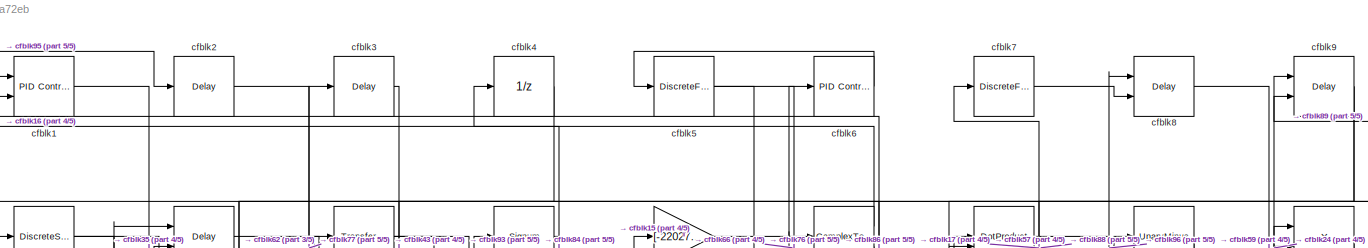
[diagram: root canvas - part 1/5, full width, top band]
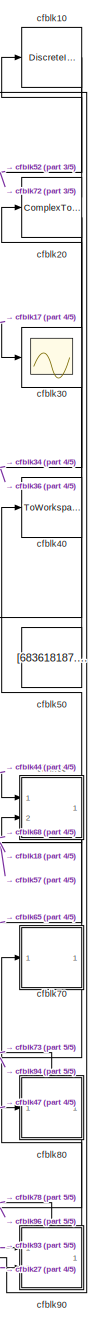
[diagram: root canvas - part 2/5, right side, full height]
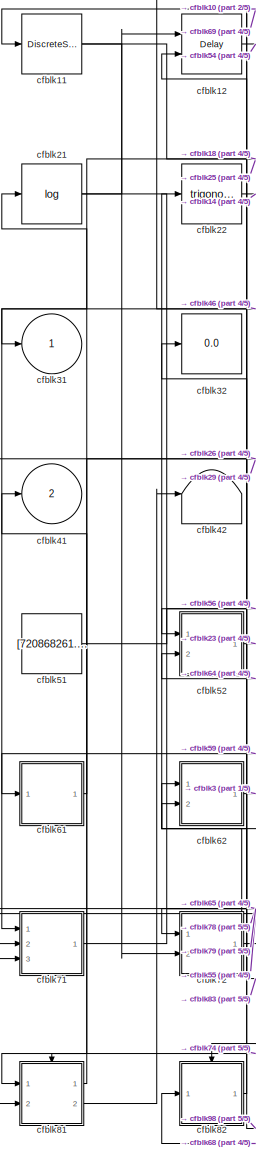
[diagram: root canvas - part 3/5, left side, full height]
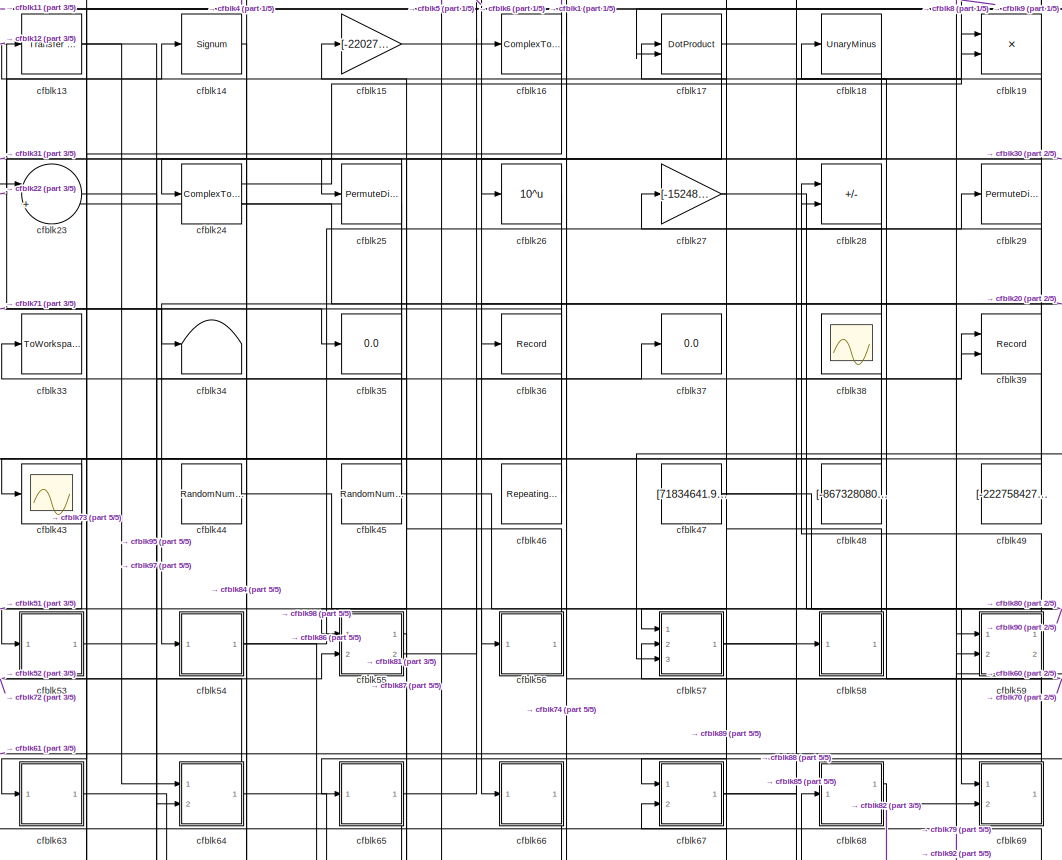
[diagram: root canvas - part 4/5, central region]
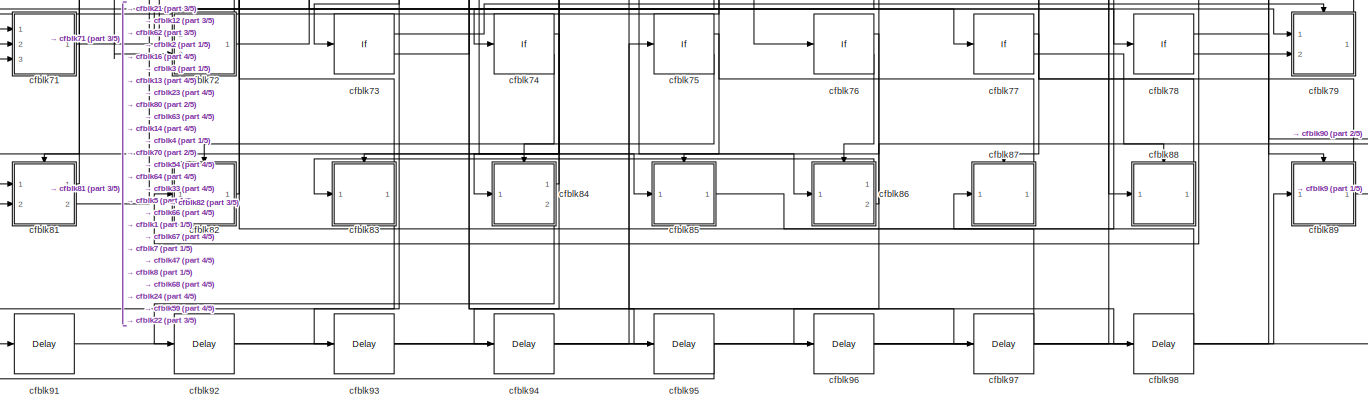
[diagram: root canvas - part 5/5, full width, bottom band]
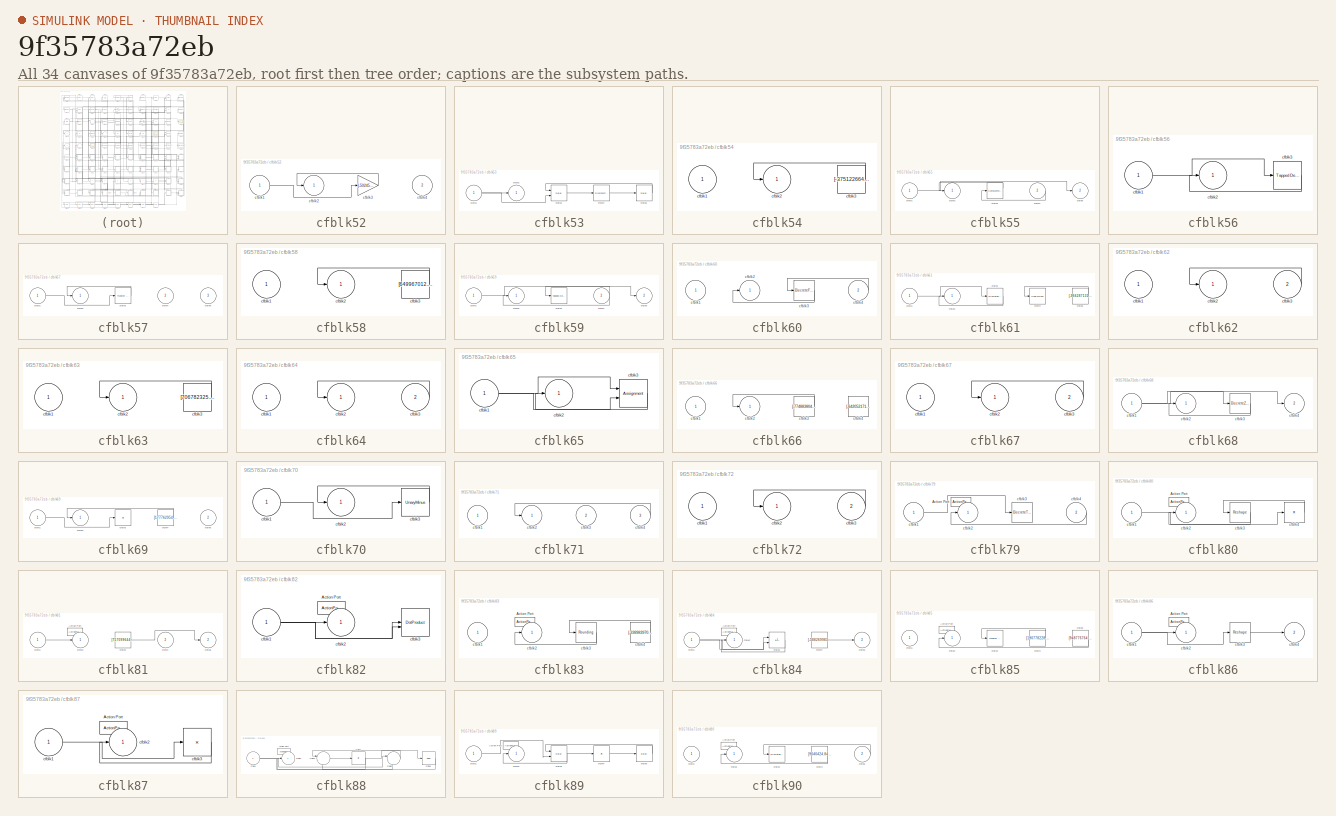
[diagram: thumbnail index - all 34 canvases of the model, root first then tree order]
MODEL slx_9f35783a72eb
KIND model
CONFIG AbsTol = auto
CONFIG EnableMultiTasking = off
CONFIG FixedStep = auto
CONFIG MaxStep = auto
CONFIG MinStep = auto
CONFIG RelTol = 1e-3
CONFIG SampleTimeConstraint = Unconstrained
CONFIG SolverName = VariableStepAuto
CONFIG StartTime = 0.0
CONFIG StopTime = 10.0
BLOCK [Reference] cfblk1  REF=slpidlib/PID Controller (2DOF)
  Ports = [2, 1]
  SourceBlock = slpidlib/PID Controller (2DOF)
  SourceProductBaseCode = SL
  SourceType = PID 2dof
BLOCK [DiscreteIntegrator] cfblk10
  ICPrevOutput = DiscIntNeverNeededParam
  ICPrevScaledInput = DiscIntNeverNeededParam
  InitialConditionSetting = Auto
  Ports = [1, 1]
BLOCK [DiscreteStateSpace] cfblk11
BLOCK [Delay] cfblk12
  InputPortMap = u0,e6
  Ports = [2, 1]
  SampleTime = 1
  ShowEnablePort = on
BLOCK [Reference] cfblk13  REF=simulink/Discrete/Transfer Fcn
First Order
  Ports = [1, 1]
  SourceBlock = simulink/Discrete/Transfer Fcn\nFirst Order
  SourceProductBaseCode = SL
  SourceType = First Order Transfer Fcn
BLOCK [Signum] cfblk14
BLOCK [Gain] cfblk15
  Gain = [-220275221.042691]
BLOCK [ComplexToRealImag] cfblk16
  Ports = [1, 2]
BLOCK [DotProduct] cfblk17
  OutDataTypeStr = Inherit: Inherit via internal rule
BLOCK [UnaryMinus] cfblk18
BLOCK [Product] cfblk19
  Ports = [2, 1]
BLOCK [Delay] cfblk2
  InputPortMap = u0
  Ports = [1, 1]
  SampleTime = 1
BLOCK [ComplexToRealImag] cfblk20
  Ports = [1, 2]
BLOCK [Math] cfblk21
  Operator = log
  Ports = [1, 1]
BLOCK [Trigonometry] cfblk22
  Ports = [1, 1]
BLOCK [Sum] cfblk23
  Inputs = |++
  Ports = [2, 1]
BLOCK [ComplexToMagnitudeAngle] cfblk24
  Ports = [1, 2]
BLOCK [PermuteDimensions] cfblk25
BLOCK [Math] cfblk26
  Operator = 10^u
  Ports = [1, 1]
BLOCK [Gain] cfblk27
  Gain = [-152482904.708316]
BLOCK [Sum] cfblk28
  IconShape = rectangular
  Inputs = -+
  Ports = [2, 1]
BLOCK [PermuteDimensions] cfblk29
BLOCK [Delay] cfblk3
  InputPortMap = u0
  Ports = [1, 1]
  SampleTime = 1
BLOCK [Scope] cfblk30
  Floating = off
  NumInputPorts = 1
  Ports = [1]
BLOCK [Outport] cfblk31
BLOCK [Display] cfblk32
  Decimation = 1
  Ports = [1]
BLOCK [ToWorkspace] cfblk33
  FixptAsFi = on
  MaxDataPoints = inf
  Ports = [1]
  SampleTime = -1
  SaveFormat = Timeseries
  VariableName = mmttlgh
BLOCK [Terminator] cfblk34
BLOCK [Display] cfblk35
  Decimation = 1
  Ports = [1]
BLOCK [Record] cfblk36
  FileSettingsInternal = {"entries":[{"content":{"excelSettings":{"content":{},"type":"Streamout.ExcelSettings"}},"type":"Streamout.FileSettingStorage","uuid":"4783f050-7d98-462b-b792-b8648497e3fe"}],"packageUris":["http://schema.mathworks.com/mf0/streamout_blocks/R2020a"],"version":"1.0"}
  Ports = [1]
  SignalsInternal = {"entries":[{"content":{"signals":[{"content":{"blockPath":["sampleModel261/cfblk36"],"channel":[],"dimensions":[1],"domain":"sampleModel261/cfblk36","lineColor":"#ff6929","plots":[1],"port":1,"sid":[""],"signalID":10888,"signalName":"cfblk20:2"},"type":"RecordBlkView.Signal","uuid":"4df9fe2c-f34f-4dbe-b7be-8e884af156bd"}]},"type":"RecordBlkView.InputSignals","uuid":"7474e692-34f3-44e7-b6b0-6796ef...<+100ch>
  VisualizationBindings = {"sparklinesplugin":{"info":[{"bindingParametersList":[],"subplotID":1}]}}
BLOCK [Display] cfblk37
  Decimation = 1
  Ports = [1]
BLOCK [Scope] cfblk38
  Floating = on
  NumInputPorts = 1
  Ports = []
BLOCK [Record] cfblk39
  CompatibilityTag = XY
  FileSettingsInternal = {"entries":[{"content":{"excelSettings":{"content":{},"type":"Streamout.ExcelSettings"}},"type":"Streamout.FileSettingStorage","uuid":"46861a95-7c26-4399-873a-b522a0f094fc"}],"packageUris":["http://schema.mathworks.com/mf0/streamout_blocks/R2020a"],"version":"1.0"}
  Layout = [1 1]
  Ports = [2]
  SignalsInternal = {"entries":[{"content":{"signals":[{"content":{"blockPath":["sampleModel261/cfblk39"],"channel":[],"dimensions":[1],"domain":"sampleModel261/cfblk39","lineColor":"#a2142f","plots":[1],"port":1,"sid":[""],"signalID":10892,"signalName":"cfblk53"},"type":"RecordBlkView.Signal","uuid":"985c65e8-5a49-40a9-873e-d05232d7a301"},{"content":{"blockPath":["sampleModel261/cfblk39"],"channel":[],"dimensions":[...<+385ch>
  VisualizationBindings = {"xyplotplugin":{"info":[{"series":[{"bindingParametersList":[{"parameter":"X-Axis","signalID":10892,"signalName":"cfblk53"},{"parameter":"Y-Axis","signalID":10896,"signalName":"cfblk67"}],"seriesID":48733}],"subplotID":1}]}}
BLOCK [UnitDelay] cfblk4
  HasFrameUpgradeWarning = on
BLOCK [ToWorkspace] cfblk40
  FixptAsFi = on
  MaxDataPoints = inf
  Ports = [1]
  SampleTime = -1
  SaveFormat = Timeseries
  VariableName = mrovnyd
BLOCK [Outport] cfblk41
  Port = 2
BLOCK [Terminator] cfblk42
BLOCK [Scope] cfblk43
  Floating = off
  NumInputPorts = 1
  Ports = [1]
BLOCK [RandomNumber] cfblk44
  Mean = [-42971.551268]
  SampleTime = 0.1
  Seed = [350835842.000000]
  Variance = [4965.905583]
BLOCK [RandomNumber] cfblk45
  Mean = [-61962.834245]
  SampleTime = 0.1
  Seed = [162837869.000000]
  Variance = [36079.524142]
BLOCK [Reference] cfblk46  REF=simulink/Sources/Repeating
Sequence
Stair
  Ports = [0, 1]
  SourceBlock = simulink/Sources/Repeating\nSequence\nStair
  SourceProductBaseCode = SL
  SourceType = Repeating Sequence Stair
BLOCK [Constant] cfblk47
  SampleTime = 1
  Value = [71834641.996804]
BLOCK [Constant] cfblk48
  SampleTime = 1
  Value = [-867328080.022931]
BLOCK [Constant] cfblk49
  SampleTime = 1
  Value = [-222758427.786879]
BLOCK [DiscreteFir] cfblk5
  InputPortMap = u0
  OutputPortMap = o0
  Ports = [1, 1]
  SampleTime = 1
BLOCK [Constant] cfblk50
  SampleTime = 1
  Value = [683618187.275819]
BLOCK [Constant] cfblk51
  SampleTime = 1
  Value = [720868261.094685]
BLOCK [SubSystem] cfblk52
  Ports = [2, 1]
  RequestExecContextInheritance = off
BLOCK [Inport] cfblk52/cfblk1
BLOCK [Outport] cfblk52/cfblk2
BLOCK [Gain] cfblk52/cfblk3
  Gain = [-502459091.034332]
BLOCK [Inport] cfblk52/cfblk4
  Port = 2
BLOCK [SubSystem] cfblk53
  Ports = [1, 1]
  RequestExecContextInheritance = off
BLOCK [Inport] cfblk53/cfblk1
BLOCK [Outport] cfblk53/cfblk2
BLOCK [Delay] cfblk53/cfblk3
  DelayLengthSource = Input port
  InputPortMap = u0,p1
  Ports = [2, 1]
  SampleTime = 1
BLOCK [DiscreteTransferFcn] cfblk53/cfblk4
  InputPortMap = u0
  Ports = [1, 1]
  SampleTime = 1
BLOCK [Delay] cfblk53/cfblk5
  InputPortMap = u0
  Ports = [1, 1]
  SampleTime = 1
BLOCK [SubSystem] cfblk54
  Ports = [1, 1]
  RequestExecContextInheritance = off
BLOCK [Inport] cfblk54/cfblk1
BLOCK [Outport] cfblk54/cfblk2
BLOCK [Constant] cfblk54/cfblk3
  SampleTime = 1
  Value = [-375122664.981902]
BLOCK [SubSystem] cfblk55
  Ports = [2, 2]
  RequestExecContextInheritance = off
BLOCK [Inport] cfblk55/cfblk1
BLOCK [Outport] cfblk55/cfblk2
BLOCK [ComplexToRealImag] cfblk55/cfblk3
  Ports = [1, 2]
BLOCK [Inport] cfblk55/cfblk4
  Port = 2
BLOCK [Outport] cfblk55/cfblk5
  Port = 2
BLOCK [SubSystem] cfblk56
  Ports = [1, 1]
  RequestExecContextInheritance = off
BLOCK [Inport] cfblk56/cfblk1
BLOCK [Outport] cfblk56/cfblk2
BLOCK [Reference] cfblk56/cfblk3  REF=simulink/Discrete/Tapped Delay
  Ports = [1, 1]
  SourceBlock = simulink/Discrete/Tapped Delay
  SourceProductBaseCode = SL
  SourceType = Tapped Delay Line
BLOCK [SubSystem] cfblk57
  Ports = [3, 1]
  RequestExecContextInheritance = off
BLOCK [Inport] cfblk57/cfblk1
BLOCK [Outport] cfblk57/cfblk2
BLOCK [Reference] cfblk57/cfblk3  REF=simulink/Discrete/Transfer Fcn
First Order
  Ports = [1, 1]
  SourceBlock = simulink/Discrete/Transfer Fcn\nFirst Order
  SourceProductBaseCode = SL
  SourceType = First Order Transfer Fcn
BLOCK [Inport] cfblk57/cfblk4
  Port = 2
BLOCK [Inport] cfblk57/cfblk5
  Port = 3
BLOCK [SubSystem] cfblk58
  Ports = [1, 1]
  RequestExecContextInheritance = off
BLOCK [Inport] cfblk58/cfblk1
BLOCK [Outport] cfblk58/cfblk2
BLOCK [Constant] cfblk58/cfblk3
  SampleTime = 1
  Value = [649967012.851321]
BLOCK [SubSystem] cfblk59
  Ports = [2, 2]
  RequestExecContextInheritance = off
BLOCK [Inport] cfblk59/cfblk1
BLOCK [Outport] cfblk59/cfblk2
BLOCK [Reference] cfblk59/cfblk3  REF=simulink/Discrete/Tapped Delay
  Ports = [1, 1]
  SourceBlock = simulink/Discrete/Tapped Delay
  SourceProductBaseCode = SL
  SourceType = Tapped Delay Line
BLOCK [Inport] cfblk59/cfblk4
  Port = 2
BLOCK [Outport] cfblk59/cfblk5
  Port = 2
BLOCK [Reference] cfblk6  REF=slpidlib/PID Controller
  Ports = [1, 1]
  SourceBlock = slpidlib/PID Controller
  SourceProductBaseCode = SL
  SourceType = PID 1dof
BLOCK [SubSystem] cfblk60
  Ports = [2, 1]
  RequestExecContextInheritance = off
BLOCK [Inport] cfblk60/cfblk1
BLOCK [Outport] cfblk60/cfblk2
BLOCK [DiscreteFilter] cfblk60/cfblk3
  InputPortMap = u0
  Ports = [1, 1]
  SampleTime = 1
BLOCK [Inport] cfblk60/cfblk4
  Port = 2
BLOCK [SubSystem] cfblk61
  Ports = [1, 1]
  RequestExecContextInheritance = off
BLOCK [Inport] cfblk61/cfblk1
BLOCK [Outport] cfblk61/cfblk2
BLOCK [DiscreteFilter] cfblk61/cfblk3
  InputPortMap = u0
  Ports = [1, 1]
  SampleTime = 1
BLOCK [UnaryMinus] cfblk61/cfblk4
BLOCK [Constant] cfblk61/cfblk5
  SampleTime = 1
  Value = [-966287131.341297]
BLOCK [SubSystem] cfblk62
  Ports = [2, 1]
  RequestExecContextInheritance = off
BLOCK [Inport] cfblk62/cfblk1
BLOCK [Outport] cfblk62/cfblk2
BLOCK [Inport] cfblk62/cfblk3
  Port = 2
BLOCK [SubSystem] cfblk63
  Ports = [1, 1]
  RequestExecContextInheritance = off
BLOCK [Inport] cfblk63/cfblk1
BLOCK [Outport] cfblk63/cfblk2
BLOCK [Constant] cfblk63/cfblk3
  SampleTime = 1
  Value = [706782325.083097]
BLOCK [SubSystem] cfblk64
  Ports = [2, 1]
  RequestExecContextInheritance = off
BLOCK [Inport] cfblk64/cfblk1
BLOCK [Outport] cfblk64/cfblk2
BLOCK [Inport] cfblk64/cfblk3
  Port = 2
BLOCK [SubSystem] cfblk65
  Ports = [1, 1]
  RequestExecContextInheritance = off
BLOCK [Inport] cfblk65/cfblk1
BLOCK [Outport] cfblk65/cfblk2
BLOCK [Assignment] cfblk65/cfblk3
  DiagnosticForDimensions = Warning
  IndexOptions = Index vector (dialog)
  Indices = 1
  OutputSizes = 1
  Ports = [2, 1]
BLOCK [SubSystem] cfblk66
  Ports = [1, 1]
  RequestExecContextInheritance = off
BLOCK [Inport] cfblk66/cfblk1
BLOCK [Outport] cfblk66/cfblk2
BLOCK [Constant] cfblk66/cfblk3
  SampleTime = 1
  Value = [-774883804.689383]
BLOCK [Constant] cfblk66/cfblk4
  SampleTime = 1
  Value = [-642052171.851356]
BLOCK [SubSystem] cfblk67
  Ports = [2, 1]
  RequestExecContextInheritance = off
BLOCK [Inport] cfblk67/cfblk1
BLOCK [Outport] cfblk67/cfblk2
BLOCK [Inport] cfblk67/cfblk3
  Port = 2
BLOCK [SubSystem] cfblk68
  Ports = [1, 2]
  RequestExecContextInheritance = off
BLOCK [Inport] cfblk68/cfblk1
BLOCK [Outport] cfblk68/cfblk2
BLOCK [DiscreteZeroPole] cfblk68/cfblk3
  Gain = 1
  Poles = [0 0.5]
BLOCK [Outport] cfblk68/cfblk4
  Port = 2
BLOCK [SubSystem] cfblk69
  Ports = [2, 1]
  RequestExecContextInheritance = off
BLOCK [Inport] cfblk69/cfblk1
BLOCK [Outport] cfblk69/cfblk2
BLOCK [Product] cfblk69/cfblk3
  Inputs = *
  Ports = [1, 1]
BLOCK [Constant] cfblk69/cfblk4
  SampleTime = 1
  Value = [177762954.511539]
BLOCK [Inport] cfblk69/cfblk5
  Port = 2
BLOCK [DiscreteFir] cfblk7
  InputPortMap = u0
  OutputPortMap = o0
  Ports = [1, 1]
  SampleTime = 1
BLOCK [SubSystem] cfblk70
  Ports = [1, 1]
  RequestExecContextInheritance = off
BLOCK [Inport] cfblk70/cfblk1
BLOCK [Outport] cfblk70/cfblk2
BLOCK [UnaryMinus] cfblk70/cfblk3
BLOCK [SubSystem] cfblk71
  Ports = [3, 1]
  RequestExecContextInheritance = off
BLOCK [Inport] cfblk71/cfblk1
BLOCK [Outport] cfblk71/cfblk2
BLOCK [Inport] cfblk71/cfblk3
  Port = 2
BLOCK [Inport] cfblk71/cfblk4
  Port = 3
BLOCK [SubSystem] cfblk72
  Ports = [2, 1]
  RequestExecContextInheritance = off
BLOCK [Inport] cfblk72/cfblk1
BLOCK [Outport] cfblk72/cfblk2
BLOCK [Inport] cfblk72/cfblk3
  Port = 2
BLOCK [If] cfblk73
  IfExpression = u1 >= 0
  Ports = [1, 2]
  SampleTime = 1
BLOCK [If] cfblk74
  IfExpression = u1 >= 0
  Ports = [1, 2]
  SampleTime = 1
BLOCK [If] cfblk75
  IfExpression = u1 >= 0
  Ports = [1, 2]
  SampleTime = 1
BLOCK [If] cfblk76
  IfExpression = u1 >= 0
  Ports = [1, 2]
  SampleTime = 1
BLOCK [If] cfblk77
  IfExpression = u1 >= 0
  Ports = [1, 2]
  SampleTime = 1
BLOCK [If] cfblk78
  IfExpression = u1 >= 0
  Ports = [1, 2]
  SampleTime = 1
BLOCK [SubSystem] cfblk79
  Ports = [2, 1, 0, 0, 0, 0, 0, 1]
  RequestExecContextInheritance = off
  TreatAsAtomicUnit = on
BLOCK [ActionPort] cfblk79/Action Port
  ActionPortLabel = if(u1 >= 0)
BLOCK [Inport] cfblk79/cfblk1
BLOCK [Outport] cfblk79/cfblk2
BLOCK [DiscreteTransferFcn] cfblk79/cfblk3
  InputPortMap = u0
  Ports = [1, 1]
BLOCK [Inport] cfblk79/cfblk4
  Port = 2
BLOCK [Delay] cfblk8
  DelayLengthSource = Input port
  InputPortMap = u0,p1
  Ports = [2, 1]
  SampleTime = 1
BLOCK [SubSystem] cfblk80
  Ports = [1, 1, 0, 0, 0, 0, 0, 1]
  RequestExecContextInheritance = off
  TreatAsAtomicUnit = on
BLOCK [ActionPort] cfblk80/Action Port
  ActionPortLabel = else
BLOCK [Inport] cfblk80/cfblk1
BLOCK [Outport] cfblk80/cfblk2
BLOCK [Reshape] cfblk80/cfblk3
  Ports = [1, 1]
BLOCK [Product] cfblk80/cfblk4
  Inputs = *
  Ports = [1, 1]
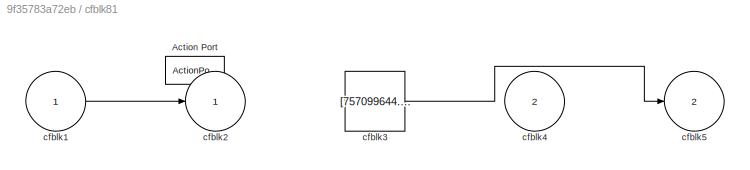
BLOCK [SubSystem] cfblk81
  Ports = [2, 2, 0, 0, 0, 0, 0, 1]
  RequestExecContextInheritance = off
  TreatAsAtomicUnit = on
BLOCK [ActionPort] cfblk81/Action Port
  ActionPortLabel = if(u1 >= 0)
BLOCK [Inport] cfblk81/cfblk1
BLOCK [Outport] cfblk81/cfblk2
BLOCK [Constant] cfblk81/cfblk3
  SampleTime = 1
  Value = [757099644.323726]
BLOCK [Inport] cfblk81/cfblk4
  Port = 2
BLOCK [Outport] cfblk81/cfblk5
  Port = 2
BLOCK [SubSystem] cfblk82
  Ports = [1, 1, 0, 0, 0, 0, 0, 1]
  RequestExecContextInheritance = off
  TreatAsAtomicUnit = on
BLOCK [ActionPort] cfblk82/Action Port
  ActionPortLabel = else
BLOCK [Inport] cfblk82/cfblk1
BLOCK [Outport] cfblk82/cfblk2
BLOCK [DotProduct] cfblk82/cfblk3
  OutDataTypeStr = Inherit: Inherit via internal rule
BLOCK [SubSystem] cfblk83
  Ports = [1, 1, 0, 0, 0, 0, 0, 1]
  RequestExecContextInheritance = off
  TreatAsAtomicUnit = on
BLOCK [ActionPort] cfblk83/Action Port
  ActionPortLabel = if(u1 >= 0)
BLOCK [Inport] cfblk83/cfblk1
BLOCK [Outport] cfblk83/cfblk2
BLOCK [Rounding] cfblk83/cfblk3
BLOCK [Constant] cfblk83/cfblk4
  SampleTime = 1
  Value = [-338983970.118135]
BLOCK [SubSystem] cfblk84
  Ports = [1, 2, 0, 0, 0, 0, 0, 1]
  RequestExecContextInheritance = off
  TreatAsAtomicUnit = on
BLOCK [ActionPort] cfblk84/Action Port
  ActionPortLabel = else
BLOCK [Inport] cfblk84/cfblk1
BLOCK [Outport] cfblk84/cfblk2
BLOCK [Sum] cfblk84/cfblk3
  IconShape = rectangular
  Inputs = +-
  Ports = [2, 1]
BLOCK [Constant] cfblk84/cfblk4
  SampleTime = 1
  Value = [-588269983.311206]
BLOCK [Outport] cfblk84/cfblk5
  Port = 2
BLOCK [SubSystem] cfblk85
  Ports = [1, 1, 0, 0, 0, 0, 0, 1]
  RequestExecContextInheritance = off
  TreatAsAtomicUnit = on
BLOCK [ActionPort] cfblk85/Action Port
  ActionPortLabel = if(u1 >= 0)
BLOCK [Inport] cfblk85/cfblk1
BLOCK [Outport] cfblk85/cfblk2
BLOCK [Reference] cfblk85/cfblk3  REF=simulink/Discrete/Transfer Fcn
Real Zero
  Ports = [1, 1]
  SourceBlock = simulink/Discrete/Transfer Fcn\nReal Zero
  SourceProductBaseCode = SL
  SourceType = Transfer Fcn Real Zero
BLOCK [Constant] cfblk85/cfblk4
  SampleTime = 1
  Value = [190778228.898179]
BLOCK [Constant] cfblk85/cfblk5
  SampleTime = 1
  Value = [948776764.086143]
BLOCK [SubSystem] cfblk86
  Ports = [1, 2, 0, 0, 0, 0, 0, 1]
  RequestExecContextInheritance = off
  TreatAsAtomicUnit = on
BLOCK [ActionPort] cfblk86/Action Port
  ActionPortLabel = else
BLOCK [Inport] cfblk86/cfblk1
BLOCK [Outport] cfblk86/cfblk2
BLOCK [Reshape] cfblk86/cfblk3
  Ports = [1, 1]
BLOCK [Outport] cfblk86/cfblk4
  Port = 2
BLOCK [SubSystem] cfblk87
  Ports = [1, 1, 0, 0, 0, 0, 0, 1]
  RequestExecContextInheritance = off
  TreatAsAtomicUnit = on
BLOCK [ActionPort] cfblk87/Action Port
  ActionPortLabel = if(u1 >= 0)
BLOCK [Inport] cfblk87/cfblk1
BLOCK [Outport] cfblk87/cfblk2
BLOCK [Product] cfblk87/cfblk3
  Inputs = *
  Ports = [1, 1]
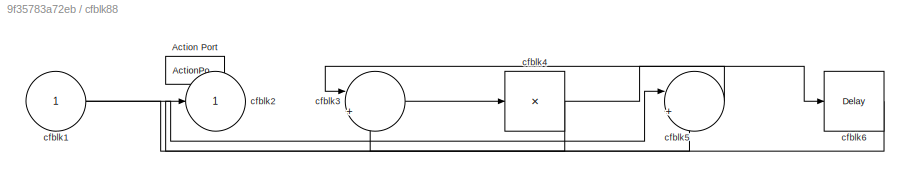
BLOCK [SubSystem] cfblk88
  Ports = [1, 1, 0, 0, 0, 0, 0, 1]
  RequestExecContextInheritance = off
  TreatAsAtomicUnit = on
BLOCK [ActionPort] cfblk88/Action Port
  ActionPortLabel = else
BLOCK [Inport] cfblk88/cfblk1
BLOCK [Outport] cfblk88/cfblk2
BLOCK [Sum] cfblk88/cfblk3
  Inputs = |++
  Ports = [2, 1]
BLOCK [Product] cfblk88/cfblk4
  Inputs = *
  Ports = [1, 1]
BLOCK [Sum] cfblk88/cfblk5
  Inputs = |++
  Ports = [2, 1]
BLOCK [Delay] cfblk88/cfblk6
  InputPortMap = u0
  Ports = [1, 1]
BLOCK [SubSystem] cfblk89
  Ports = [1, 1, 0, 0, 0, 0, 0, 1]
  RequestExecContextInheritance = off
  TreatAsAtomicUnit = on
BLOCK [ActionPort] cfblk89/Action Port
  ActionPortLabel = if(u1 >= 0)
BLOCK [Inport] cfblk89/cfblk1
BLOCK [Outport] cfblk89/cfblk2
BLOCK [Delay] cfblk89/cfblk3
  InputPortMap = u0,e6
  Ports = [2, 1]
  ShowEnablePort = on
BLOCK [Product] cfblk89/cfblk4
  Inputs = *
  Ports = [1, 1]
BLOCK [Delay] cfblk89/cfblk5
  InputPortMap = u0
  Ports = [1, 1]
BLOCK [Delay] cfblk9
  InputPortMap = u0,e6
  Ports = [2, 1]
  SampleTime = 1
  ShowEnablePort = on
BLOCK [SubSystem] cfblk90
  Ports = [2, 1, 0, 0, 0, 0, 0, 1]
  RequestExecContextInheritance = off
  TreatAsAtomicUnit = on
BLOCK [ActionPort] cfblk90/Action Port
  ActionPortLabel = else
BLOCK [Inport] cfblk90/cfblk1
BLOCK [Outport] cfblk90/cfblk2
BLOCK [DiscreteFilter] cfblk90/cfblk3
  InputPortMap = u0
  Ports = [1, 1]
BLOCK [Constant] cfblk90/cfblk4
  SampleTime = 1
  Value = [9040424.845912]
BLOCK [Inport] cfblk90/cfblk5
  Port = 2
BLOCK [Delay] cfblk91
  InputPortMap = u0
  Ports = [1, 1]
  SampleTime = 1
BLOCK [Delay] cfblk92
  InputPortMap = u0
  Ports = [1, 1]
  SampleTime = 1
BLOCK [Delay] cfblk93
  InputPortMap = u0
  Ports = [1, 1]
  SampleTime = 1
BLOCK [Delay] cfblk94
  InputPortMap = u0
  Ports = [1, 1]
  SampleTime = 1
BLOCK [Delay] cfblk95
  InputPortMap = u0
  Ports = [1, 1]
  SampleTime = 1
BLOCK [Delay] cfblk96
  InputPortMap = u0
  Ports = [1, 1]
  SampleTime = 1
BLOCK [Delay] cfblk97
  InputPortMap = u0
  Ports = [1, 1]
  SampleTime = 1
BLOCK [Delay] cfblk98
  InputPortMap = u0
  Ports = [1, 1]
  SampleTime = 1
NET cfblk10:1 -> cfblk52:1, cfblk72:1
NET cfblk11:1 -> cfblk25:1, cfblk72:2
LINE cfblk12:1 -> cfblk54:1
NET cfblk13:1 -> cfblk64:1, cfblk97:1
LINE cfblk14:1 -> cfblk84:1
LINE cfblk15:1 -> cfblk6:1
LINE cfblk16:1 -> cfblk1:1
LINE cfblk16:2 -> cfblk73:1
NET cfblk17:1 -> cfblk30:1, cfblk55:1, cfblk64:2
LINE cfblk18:1 -> cfblk31:1
LINE cfblk19:1 -> cfblk26:1
LINE cfblk1:1 -> cfblk35:1
LINE cfblk20:1 -> cfblk10:1
NET cfblk20:2 -> cfblk34:1, cfblk36:1, cfblk57:3
NET cfblk21:1 -> cfblk12:1, cfblk78:1
LINE cfblk22:1 -> cfblk14:1
LINE cfblk23:1 -> cfblk95:1
LINE cfblk24:1 -> cfblk9:2
LINE cfblk24:2 -> cfblk79:2
NET cfblk25:1 -> cfblk24:1, cfblk63:1
LINE cfblk26:1 -> cfblk81:1
NET cfblk27:1 -> cfblk67:1, cfblk90:2
LINE cfblk28:1 -> cfblk53:1
NET cfblk29:1 -> cfblk13:1, cfblk71:3
LINE cfblk2:1 -> cfblk77:1
LINE cfblk3:1 -> cfblk93:1
LINE cfblk44:1 -> cfblk60:1
NET cfblk45:1 -> cfblk23:2, cfblk69:1
LINE cfblk46:1 -> cfblk71:1
NET cfblk47:1 -> cfblk80:1, cfblk88:1
LINE cfblk48:1 -> cfblk27:1
LINE cfblk49:1 -> cfblk28:1
LINE cfblk4:1 -> cfblk43:1
LINE cfblk50:1 -> cfblk20:1
LINE cfblk51:1 -> cfblk56:1
LINE cfblk52/cfblk1:1 -> cfblk52/cfblk3:1
LINE cfblk52/cfblk3:1 -> cfblk52/cfblk2:1
LINE cfblk52:1 -> cfblk23:1
NET cfblk53/cfblk1:1 -> cfblk53/cfblk2:1, cfblk53/cfblk3:2
LINE cfblk53/cfblk3:1 -> cfblk53/cfblk4:1
LINE cfblk53/cfblk4:1 -> cfblk53/cfblk5:1
LINE cfblk53/cfblk5:1 -> cfblk53/cfblk3:1
LINE cfblk53:1 -> cfblk39:1
LINE cfblk54/cfblk3:1 -> cfblk54/cfblk2:1
NET cfblk54:1 -> cfblk29:1, cfblk98:1
LINE cfblk55/cfblk1:1 -> cfblk55/cfblk5:1
LINE cfblk55/cfblk3:1 -> cfblk55/cfblk2:1
LINE cfblk55/cfblk4:1 -> cfblk55/cfblk3:1
LINE cfblk55:1 -> cfblk71:2
LINE cfblk55:2 -> cfblk16:1
LINE cfblk56/cfblk1:1 -> cfblk56/cfblk3:1
LINE cfblk56/cfblk3:1 -> cfblk56/cfblk2:1
LINE cfblk56:1 -> cfblk15:1
LINE cfblk57/cfblk1:1 -> cfblk57/cfblk3:1
LINE cfblk57/cfblk3:1 -> cfblk57/cfblk2:1
NET cfblk57:1 -> cfblk19:1, cfblk19:2
LINE cfblk58/cfblk3:1 -> cfblk58/cfblk2:1
LINE cfblk58:1 -> cfblk17:1
LINE cfblk59/cfblk1:1 -> cfblk59/cfblk5:1
NET cfblk59/cfblk4:1 -> cfblk59/cfblk2:1, cfblk59/cfblk3:1
LINE cfblk59:1 -> cfblk28:2
NET cfblk59:2 -> cfblk61:1, cfblk69:2
NET cfblk5:1 -> cfblk66:1, cfblk76:1
LINE cfblk60/cfblk3:1 -> cfblk60/cfblk2:1
LINE cfblk60/cfblk4:1 -> cfblk60/cfblk3:1
NET cfblk60:1 -> cfblk40:1, cfblk57:2, cfblk65:1
LINE cfblk61/cfblk1:1 -> cfblk61/cfblk3:1
LINE cfblk61/cfblk3:1 -> cfblk61/cfblk2:1
LINE cfblk61/cfblk5:1 -> cfblk61/cfblk4:1
LINE cfblk61:1 -> cfblk21:1
LINE cfblk62/cfblk3:1 -> cfblk62/cfblk2:1
LINE cfblk62:1 -> cfblk3:1
LINE cfblk63/cfblk3:1 -> cfblk63/cfblk2:1
LINE cfblk63:1 -> cfblk85:1
LINE cfblk64/cfblk3:1 -> cfblk64/cfblk2:1
NET cfblk64:1 -> cfblk52:2, cfblk86:1
NET cfblk65/cfblk1:1 -> cfblk65/cfblk3:1, cfblk65/cfblk3:2
LINE cfblk65/cfblk3:1 -> cfblk65/cfblk2:1
NET cfblk65:1 -> cfblk37:1, cfblk81:2
LINE cfblk66/cfblk3:1 -> cfblk66/cfblk2:1
LINE cfblk66:1 -> cfblk74:1
LINE cfblk67/cfblk3:1 -> cfblk67/cfblk2:1
NET cfblk67:1 -> cfblk39:2, cfblk58:1
NET cfblk68/cfblk1:1 -> cfblk68/cfblk3:1, cfblk68/cfblk4:1
LINE cfblk68/cfblk3:1 -> cfblk68/cfblk2:1
LINE cfblk68:1 -> cfblk82:1
LINE cfblk68:2 -> cfblk60:2
LINE cfblk69/cfblk1:1 -> cfblk69/cfblk3:1
LINE cfblk69/cfblk4:1 -> cfblk69/cfblk2:1
LINE cfblk69:1 -> cfblk11:1
LINE cfblk6:1 -> cfblk5:1
LINE cfblk70/cfblk1:1 -> cfblk70/cfblk3:1
LINE cfblk70/cfblk3:1 -> cfblk70/cfblk2:1
NET cfblk70:1 -> cfblk18:1, cfblk94:1
LINE cfblk71/cfblk4:1 -> cfblk71/cfblk2:1
LINE cfblk71:1 -> cfblk79:1
LINE cfblk72/cfblk3:1 -> cfblk72/cfblk2:1
NET cfblk72:1 -> cfblk55:2, cfblk62:1
LINE cfblk73:1 -> cfblk79:ifaction
LINE cfblk73:2 -> cfblk80:ifaction
LINE cfblk74:1 -> cfblk81:ifaction
LINE cfblk74:2 -> cfblk82:ifaction
LINE cfblk75:1 -> cfblk83:ifaction
LINE cfblk75:2 -> cfblk84:ifaction
LINE cfblk76:1 -> cfblk85:ifaction
LINE cfblk76:2 -> cfblk86:ifaction
LINE cfblk77:1 -> cfblk87:ifaction
LINE cfblk77:2 -> cfblk88:ifaction
LINE cfblk78:1 -> cfblk89:ifaction
LINE cfblk78:2 -> cfblk90:ifaction
LINE cfblk79/cfblk1:1 -> cfblk79/cfblk3:1
LINE cfblk79/cfblk4:1 -> cfblk79/cfblk2:1
LINE cfblk79:1 -> cfblk22:1
LINE cfblk7:1 -> cfblk8:2
LINE cfblk80/cfblk1:1 -> cfblk80/cfblk4:1
LINE cfblk80/cfblk3:1 -> cfblk80/cfblk2:1
LINE cfblk80/cfblk4:1 -> cfblk80/cfblk3:1
LINE cfblk80:1 -> cfblk96:1
LINE cfblk81/cfblk1:1 -> cfblk81/cfblk2:1
LINE cfblk81/cfblk3:1 -> cfblk81/cfblk5:1
LINE cfblk81:1 -> cfblk41:1
LINE cfblk81:2 -> cfblk42:1
NET cfblk82/cfblk1:1 -> cfblk82/cfblk2:1, cfblk82/cfblk3:1, cfblk82/cfblk3:2
LINE cfblk82:1 -> cfblk32:1
LINE cfblk83/cfblk3:1 -> cfblk83/cfblk2:1
LINE cfblk83/cfblk4:1 -> cfblk83/cfblk3:1
NET cfblk83:1 -> cfblk62:2, cfblk91:1
NET cfblk84/cfblk1:1 -> cfblk84/cfblk3:1, cfblk84/cfblk3:2
LINE cfblk84/cfblk3:1 -> cfblk84/cfblk2:1
LINE cfblk84/cfblk4:1 -> cfblk84/cfblk5:1
LINE cfblk84:1 -> cfblk4:1
LINE cfblk84:2 -> cfblk92:1
LINE cfblk85/cfblk4:1 -> cfblk85/cfblk3:1
LINE cfblk85/cfblk5:1 -> cfblk85/cfblk2:1
LINE cfblk85:1 -> cfblk68:1
NET cfblk86/cfblk1:1 -> cfblk86/cfblk2:1, cfblk86/cfblk3:1
LINE cfblk86/cfblk3:1 -> cfblk86/cfblk4:1
LINE cfblk86:1 -> cfblk83:1
LINE cfblk86:2 -> cfblk1:2
LINE cfblk87/cfblk1:1 -> cfblk87/cfblk3:1
LINE cfblk87/cfblk3:1 -> cfblk87/cfblk2:1
LINE cfblk87:1 -> cfblk33:1
NET cfblk88/cfblk1:1 -> cfblk88/cfblk5:1, cfblk88/cfblk5:2
LINE cfblk88/cfblk3:1 -> cfblk88/cfblk4:1
NET cfblk88/cfblk4:1 -> cfblk88/cfblk2:1, cfblk88/cfblk6:1
LINE cfblk88/cfblk5:1 -> cfblk88/cfblk3:1
LINE cfblk88/cfblk6:1 -> cfblk88/cfblk3:2
LINE cfblk88:1 -> cfblk7:1
LINE cfblk89/cfblk1:1 -> cfblk89/cfblk3:2
NET cfblk89/cfblk3:1 -> cfblk89/cfblk2:1, cfblk89/cfblk4:1
LINE cfblk89/cfblk4:1 -> cfblk89/cfblk5:1
LINE cfblk89/cfblk5:1 -> cfblk89/cfblk3:1
NET cfblk89:1 -> cfblk67:2, cfblk9:1
LINE cfblk8:1 -> cfblk59:1
LINE cfblk90/cfblk4:1 -> cfblk90/cfblk2:1
LINE cfblk90/cfblk5:1 -> cfblk90/cfblk3:1
LINE cfblk90:1 -> cfblk70:1
LINE cfblk91:1 -> cfblk75:1
LINE cfblk92:1 -> cfblk59:2
LINE cfblk93:1 -> cfblk90:1
LINE cfblk94:1 -> cfblk89:1
LINE cfblk95:1 -> cfblk2:1
LINE cfblk96:1 -> cfblk8:1
LINE cfblk97:1 -> cfblk87:1
LINE cfblk98:1 -> cfblk12:2
NET cfblk9:1 -> cfblk17:2, cfblk57:1
note: NET lines group one-source signal fan-out (src -> all destinations, sorted); 1:1 wires keep LINE
